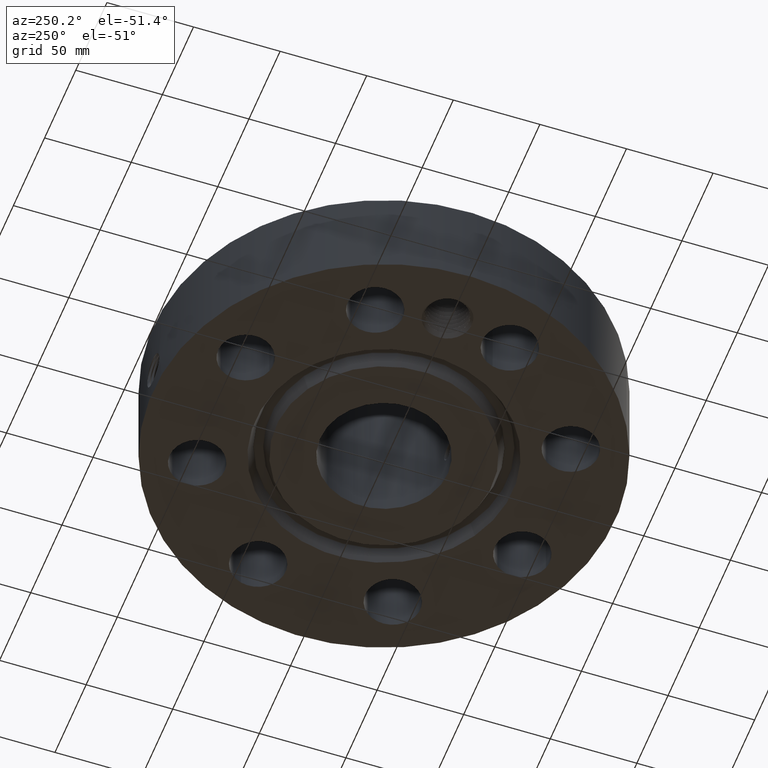
[diagram: clean part render]
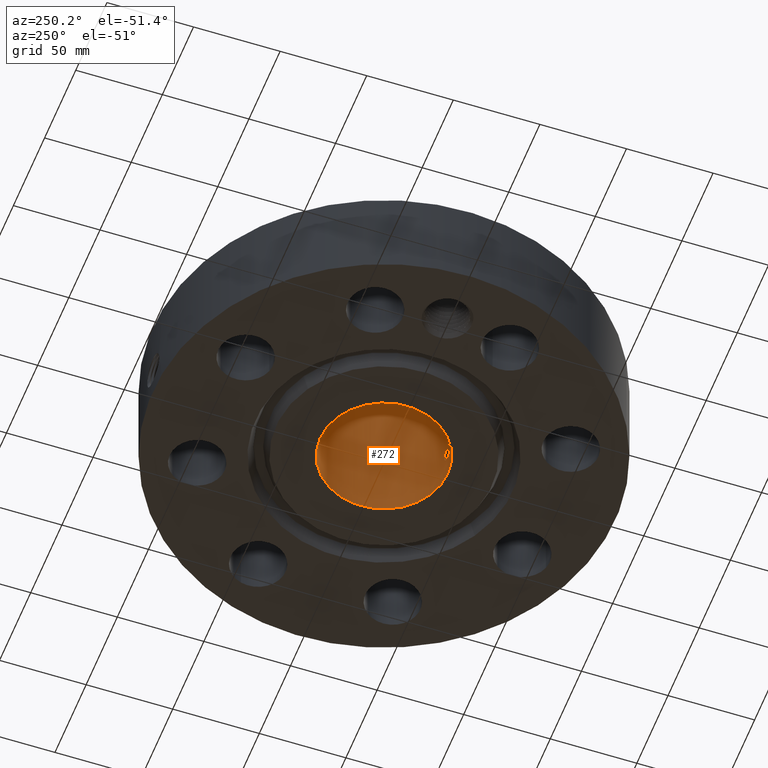
[diagram: same view with one face highlighted and labeled with its STEP entity id]
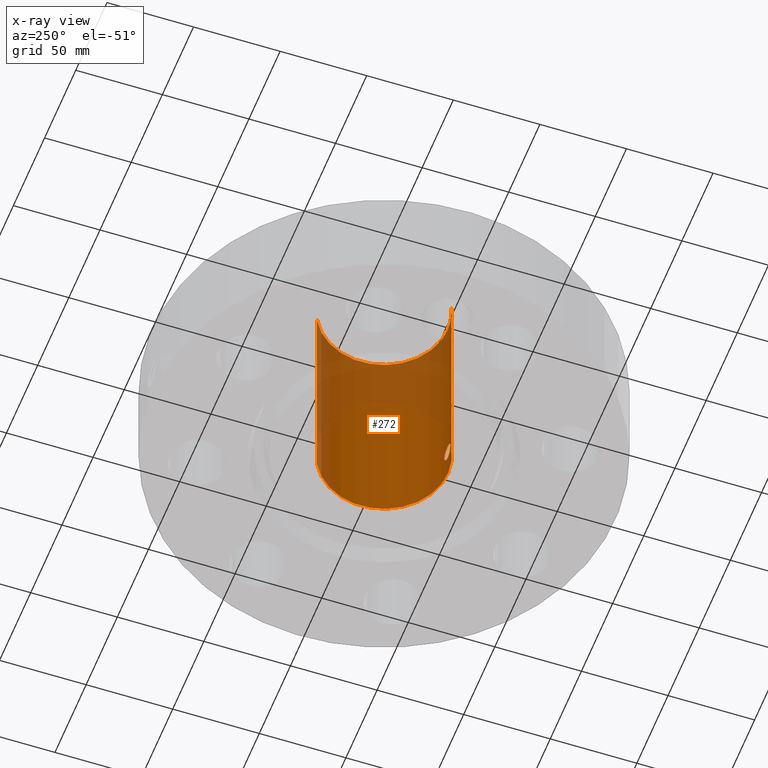
[diagram: x-ray of the same camera — body ghosted, the highlighted face saturated]
A machine part, auxiliary view. The second image highlights one B-rep face of the part: STEP entity #272.
The next image is the same camera in x-ray: the body ghosted, the highlighted face saturated — about 42% of this face is hidden behind the body in this view.
In plain terms, the highlighted cylindrical surface (partial cylindrical patch) has radius 36.83 mm, axis along (0, 0, -1).
Its self-contained STEP definition (entity closure, byte-faithful):
#232=AXIS2_PLACEMENT_3D('Cylinder Axis2P3D',#229,#230,#231) ;
#236=AXIS2_PLACEMENT_3D('Circle Axis2P3D',#234,#235,$) ;
#252=AXIS2_PLACEMENT_3D('Circle Axis2P3D',#250,#251,$) ;
#81=CARTESIAN_POINT('Control Point',(0.164546730355,-1.44063332377,0.660107711514)) ;
#82=CARTESIAN_POINT('Control Point',(0.153731070917,-1.44186867031,0.640309779711)) ;
#83=CARTESIAN_POINT('Control Point',(0.139944062612,-1.44334057186,0.622149863833)) ;
#84=CARTESIAN_POINT('Control Point',(0.123510220849,-1.44489924183,0.606210656527)) ;
#85=CARTESIAN_POINT('Control Point',(0.0771457999694,-1.44849158983,0.573196886422)) ;
#86=CARTESIAN_POINT('Control Point',(0.0211415929534,-1.45046277824,0.559002229906)) ;
#87=CARTESIAN_POINT('Control Point',(-0.0138878046331,-1.45055905133,0.558336349551)) ;
#88=CARTESIAN_POINT('Control Point',(-0.0704179716367,-1.44885595419,0.570406316137)) ;
#89=CARTESIAN_POINT('Control Point',(-0.118016274531,-1.44536877479,0.601663420167)) ;
#90=CARTESIAN_POINT('Control Point',(-0.135050970331,-1.44381724885,0.616987425147)) ;
#91=CARTESIAN_POINT('Control Point',(-0.174424580984,-1.43973531707,0.665004019654)) ;
#92=CARTESIAN_POINT('Control Point',(-0.192227282887,-1.43719598434,0.725976487021)) ;
#93=CARTESIAN_POINT('Control Point',(-0.192994746997,-1.43707884691,0.766812208914)) ;
#94=CARTESIAN_POINT('Control Point',(-0.183180576883,-1.43850499696,0.805783261215)) ;
#95=CARTESIAN_POINT('Control Point',(-0.164546730355,-1.44063332377,0.839892288492)) ;
#96=CARTESIAN_POINT('Vertex',(0.164546730355,-1.44063332377,0.660107711514)) ;
#98=CARTESIAN_POINT('Vertex',(-0.164546730355,-1.44063332377,0.839892288492)) ;
#206=CARTESIAN_POINT('Control Point',(0.164546730355,-1.44063332377,0.660107711514)) ;
#207=CARTESIAN_POINT('Control Point',(0.180667055465,-1.43879208718,0.689615768698)) ;
#208=CARTESIAN_POINT('Control Point',(0.190186601222,-1.4374763703,0.722762639018)) ;
#209=CARTESIAN_POINT('Control Point',(0.191981284982,-1.43721395412,0.757610898284)) ;
#210=CARTESIAN_POINT('Control Point',(0.181826871859,-1.43868281963,0.814335575685)) ;
#211=CARTESIAN_POINT('Control Point',(0.152306940281,-1.44206046876,0.862832498152)) ;
#212=CARTESIAN_POINT('Control Point',(0.137610655774,-1.443595708,0.880350178265)) ;
#213=CARTESIAN_POINT('Control Point',(0.0949008374204,-1.44737324457,0.917937819121)) ;
#214=CARTESIAN_POINT('Control Point',(0.0406901605052,-1.4500144842,0.937807204922)) ;
#215=CARTESIAN_POINT('Control Point',(0.00590053300485,-1.45062862868,0.94208548022)) ;
#216=CARTESIAN_POINT('Control Point',(-0.0569774209201,-1.44961311014,0.935302563202)) ;
#217=CARTESIAN_POINT('Control Point',(-0.111576622244,-1.44600196691,0.904578320113)) ;
#218=CARTESIAN_POINT('Control Point',(-0.133344160786,-1.44404078035,0.886240728178)) ;
#219=CARTESIAN_POINT('Control Point',(-0.151205851832,-1.44215709661,0.864312602826)) ;
#220=CARTESIAN_POINT('Control Point',(-0.164546730355,-1.44063332377,0.839892288492)) ;
#229=CARTESIAN_POINT('Axis2P3D Location',(0.,0.,2.46600000001)) ;
#234=CARTESIAN_POINT('Axis2P3D Location',(0.,0.,4.93200000002)) ;
#238=CARTESIAN_POINT('Vertex',(0.695167030979,1.27249471475,4.93200000002)) ;
#240=CARTESIAN_POINT('Vertex',(-0.695167030979,-1.27249471475,4.93200000002)) ;
#243=CARTESIAN_POINT('Line Origine',(0.695167030979,1.27249471475,2.46600000001)) ;
#247=CARTESIAN_POINT('Vertex',(0.695167030979,1.27249471475,-7.55301333288E-015)) ;
#250=CARTESIAN_POINT('Axis2P3D Location',(0.,0.,-7.83275456743E-015)) ;
#254=CARTESIAN_POINT('Vertex',(-0.695167030979,-1.27249471475,-7.55301333288E-015)) ;
#257=CARTESIAN_POINT('Line Origine',(-0.695167030979,-1.27249471475,2.46600000001)) ;
#230=DIRECTION('Axis2P3D Direction',(0.,0.,-0.0393700787402)) ;
#231=DIRECTION('Axis2P3D XDirection',(-0.0188750212049,-0.0345504945626,0.)) ;
#235=DIRECTION('Axis2P3D Direction',(0.,0.,-0.0393700787402)) ;
#244=DIRECTION('Vector Direction',(0.,0.,-0.0393700787402)) ;
#251=DIRECTION('Axis2P3D Direction',(0.,0.,-0.0393700787402)) ;
#258=DIRECTION('Vector Direction',(0.,0.,-0.0393700787402)) ;
#245=VECTOR('Line Direction',#244,0.0393700787402) ;
#259=VECTOR('Line Direction',#258,0.0393700787402) ;
#263=ORIENTED_EDGE('',*,*,#242,.F.) ;
#264=ORIENTED_EDGE('',*,*,#249,.T.) ;
#265=ORIENTED_EDGE('',*,*,#256,.T.) ;
#266=ORIENTED_EDGE('',*,*,#261,.F.) ;
#269=ORIENTED_EDGE('',*,*,#100,.F.) ;
#270=ORIENTED_EDGE('',*,*,#221,.T.) ;
#271=FACE_BOUND('',#268,.T.) ;
#272=ADVANCED_FACE('PartBody',(#267,#271),#233,.F.) ;
#80=B_SPLINE_CURVE_WITH_KNOTS('',5,(#81,#82,#83,#84,#85,#86,#87,#88,#89,#90,#91,#92,#93,#94,#95),.UNSPECIFIED.,.F.,.U.,(6,3,3,3,6),(0.,4.05789415004,10.1286634853,14.1897420038,21.1809178309),.UNSPECIFIED.) ;
#205=B_SPLINE_CURVE_WITH_KNOTS('',5,(#206,#207,#208,#209,#210,#211,#212,#213,#214,#215,#216,#217,#218,#219,#220),.UNSPECIFIED.,.F.,.U.,(6,3,3,3,6),(0.,6.04813542214,10.1009760665,16.1756421208,21.180965488),.UNSPECIFIED.) ;
#237=CIRCLE('generated circle',#236,1.45000000001) ;
#253=CIRCLE('generated circle',#252,1.45000000001) ;
#233=CYLINDRICAL_SURFACE('generated cylinder',#232,1.45000000001) ;
#100=EDGE_CURVE('',#97,#99,#80,.T.) ;
#221=EDGE_CURVE('',#97,#99,#205,.T.) ;
#242=EDGE_CURVE('',#239,#241,#237,.T.) ;
#249=EDGE_CURVE('',#239,#248,#246,.T.) ;
#256=EDGE_CURVE('',#248,#255,#253,.T.) ;
#261=EDGE_CURVE('',#241,#255,#260,.T.) ;
#262=EDGE_LOOP('',(#263,#264,#265,#266)) ;
#268=EDGE_LOOP('',(#269,#270)) ;
#267=FACE_OUTER_BOUND('',#262,.T.) ;
#246=LINE('Line',#243,#245) ;
#260=LINE('Line',#257,#259) ;
#97=VERTEX_POINT('',#96) ;
#99=VERTEX_POINT('',#98) ;
#239=VERTEX_POINT('',#238) ;
#241=VERTEX_POINT('',#240) ;
#248=VERTEX_POINT('',#247) ;
#255=VERTEX_POINT('',#254) ;